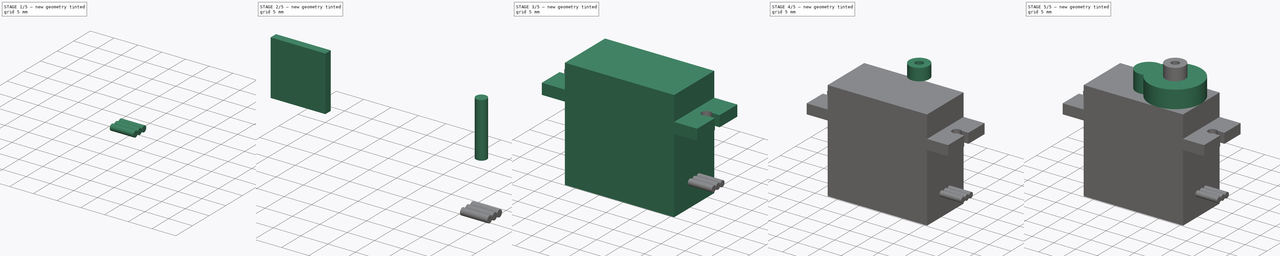
[diagram: build sequence overview — one tinted view per stage of 5, left to right]
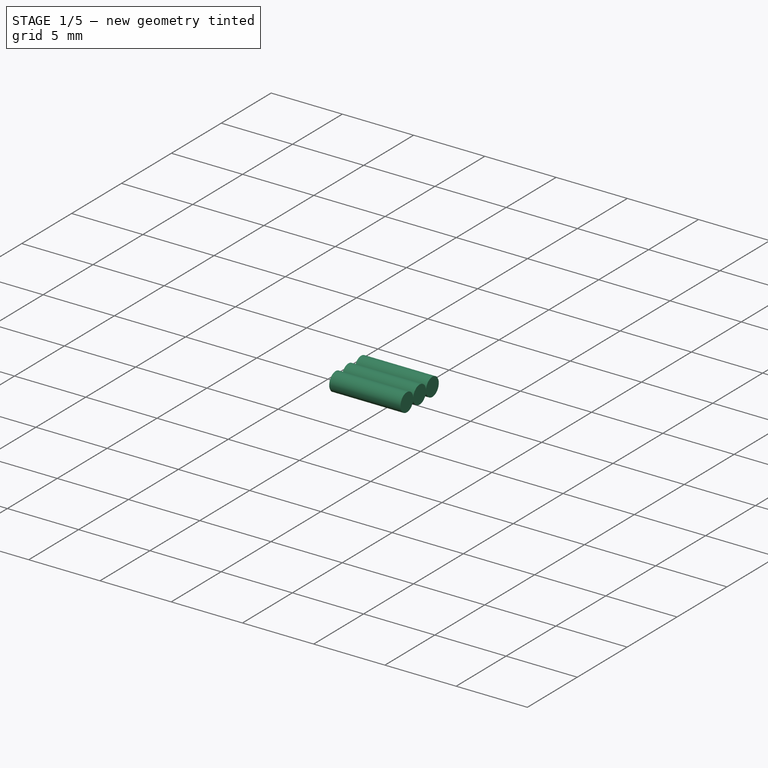
[diagram: stage 1 of 5 — iso view after this stage's code; geometry added in this stage tinted green]
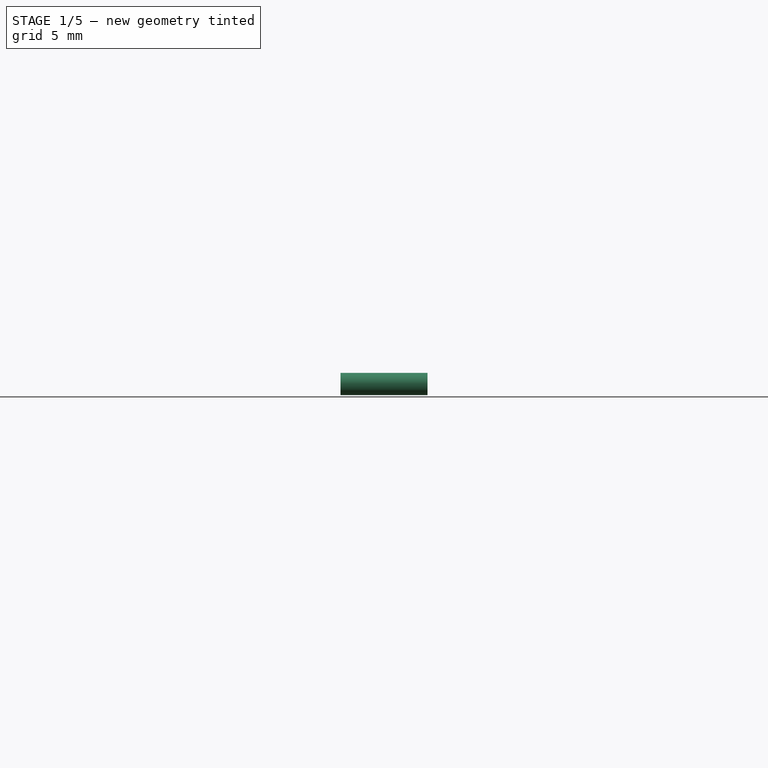
[diagram: stage 1 of 5 — front view after this stage's code; geometry added in this stage tinted green]
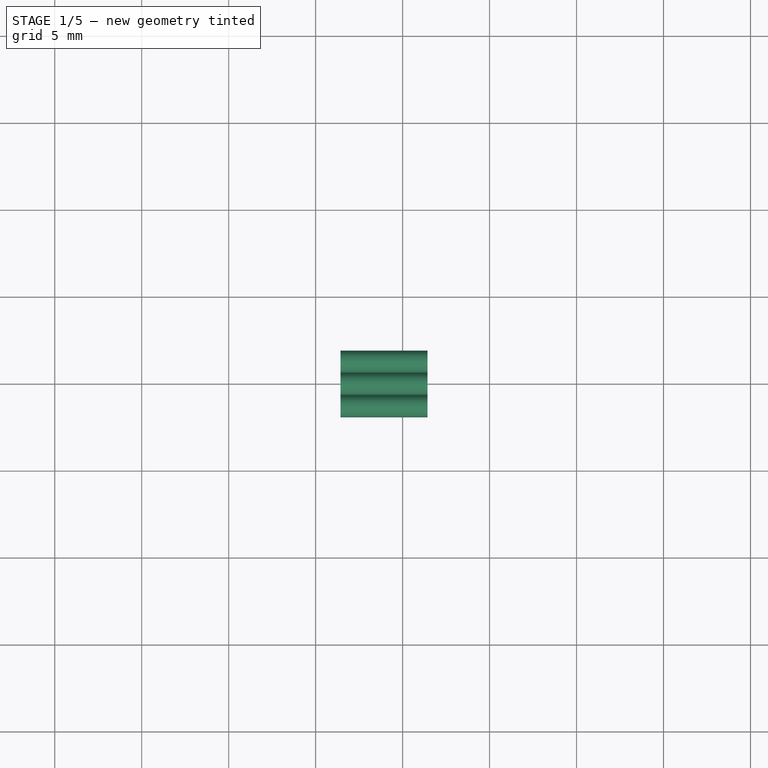
[diagram: stage 1 of 5 — top view after this stage's code; geometry added in this stage tinted green]
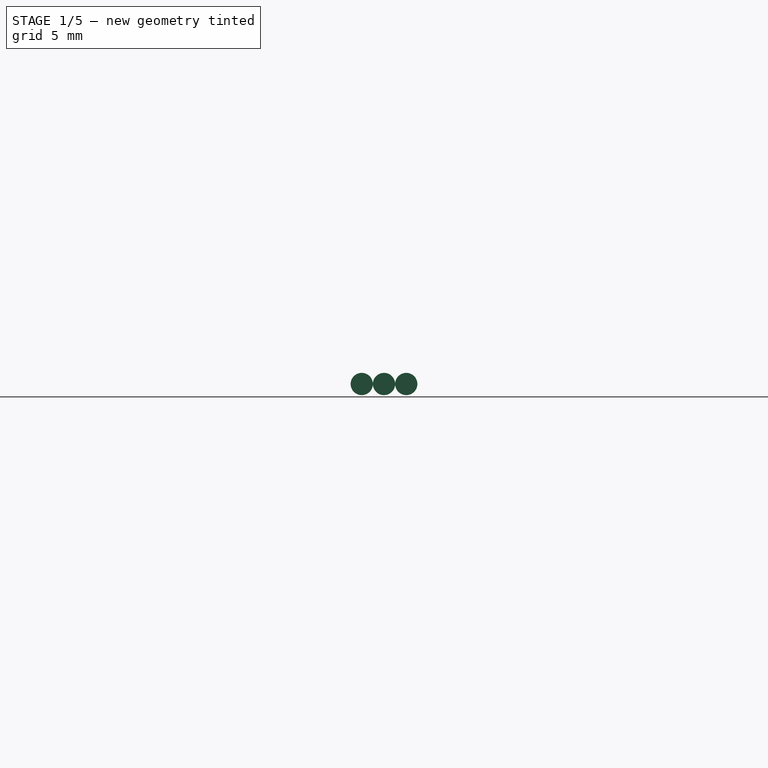
[diagram: stage 1 of 5 — right view after this stage's code; geometry added in this stage tinted green]
FCSTD DOCUMENT  (FreeCAD 0.14R2935 (Git))
Label: servo-00
License: CC-BY 3.0
LicenseURL: http://creativecommons.org/licenses/by/3.0/
objects: Part::Cylinder×8, Part::Cut×2, Part::Mirroring×2, Part::MultiFuse×2, Sketcher::SketchObject×1, PartDesign::Pad×1, Part::Box×1
note: 18 computed .brp shape members not serialized (recipe doc carries the construction recipe); baked Part::Feature solids carry a one-line shape summary decoded from their .brp

FEATURE [Part::Cylinder] Cylinder005
  Angle = 360
  Height = 5
  Placement = pos=(11.43,0,-12) rot=(0,1,0;1.5708rad)
  Radius = 0.64
FEATURE [Part::Cylinder] Cylinder006
  Angle = 360
  Height = 5
  Placement = pos=(11.43,-1.28,-12) rot=(0,1,0;1.5708rad)
  Radius = 0.64
FEATURE [Part::Cylinder] Cylinder007
  Angle = 360
  Height = 5
  Placement = pos=(11.43,1.28,-12) rot=(0,1,0;1.5708rad)
  Radius = 0.64
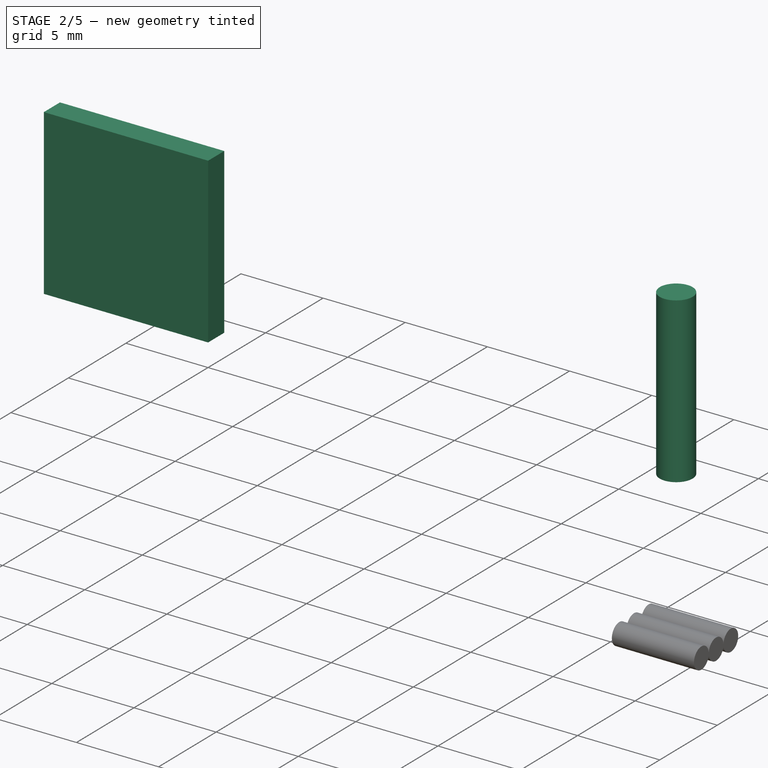
[diagram: stage 2 of 5 — iso view after this stage's code; geometry added in this stage tinted green]
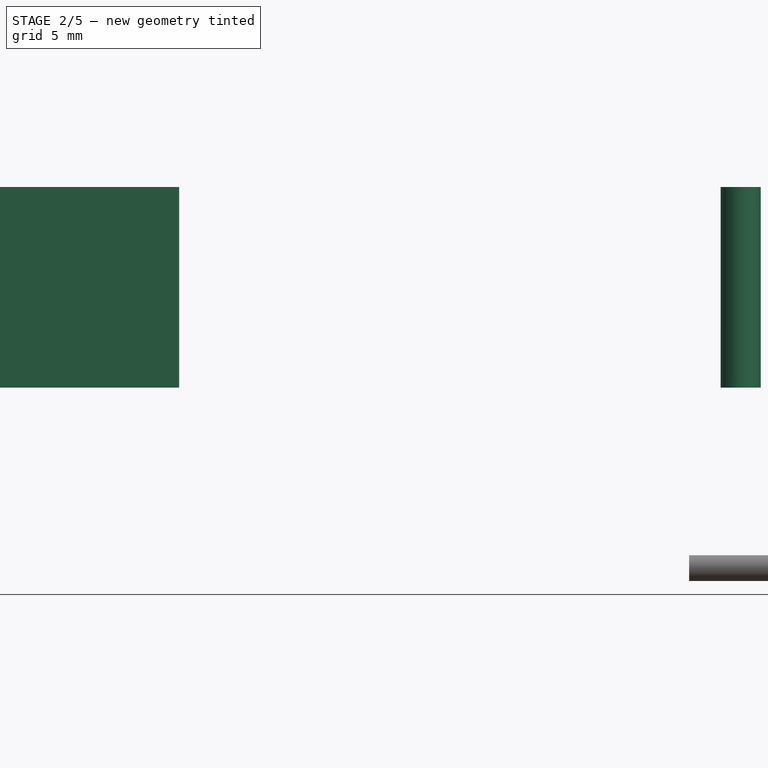
[diagram: stage 2 of 5 — front view after this stage's code; geometry added in this stage tinted green]
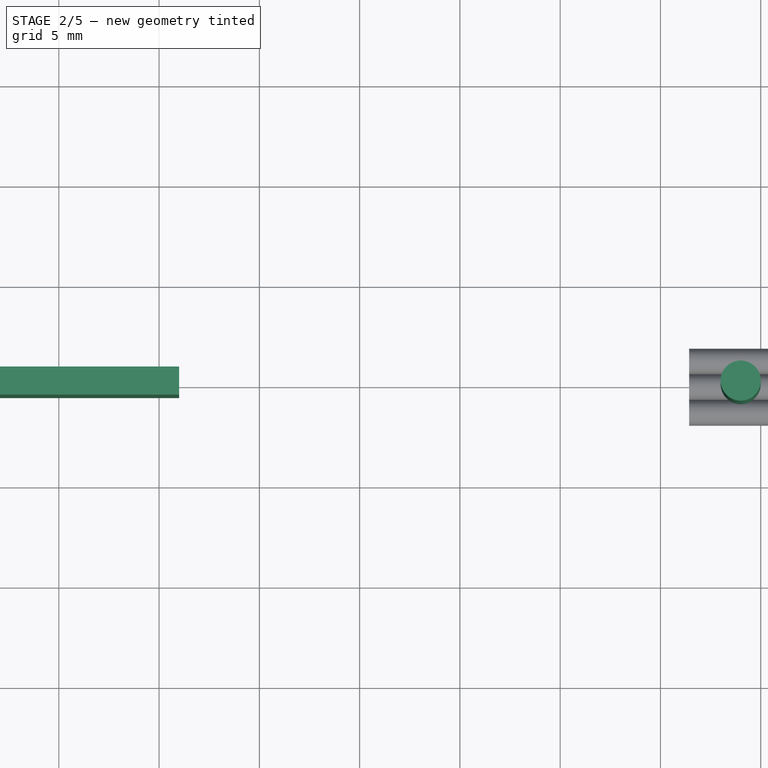
[diagram: stage 2 of 5 — top view after this stage's code; geometry added in this stage tinted green]
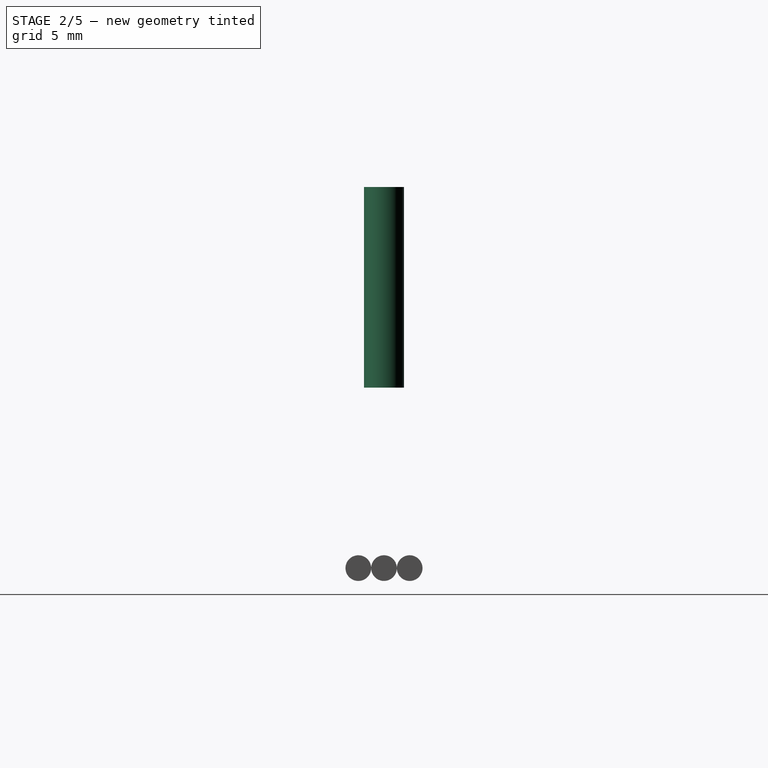
[diagram: stage 2 of 5 — right view after this stage's code; geometry added in this stage tinted green]
FEATURE [Part::Cylinder] Cylinder004
  Angle = 360
  Height = 10
  Placement = pos=(14,0,-3) rot=(0,0,1;0rad)
  Radius = 1
FEATURE [Part::Box] Box
  Height = 10
  Length = 10
  Placement = pos=(14,-0.7,-3) rot=(0,0,1;0rad)
  Width = 1.4
FEATURE [Part::Mirroring] Part__Mirroring001  label="Box (Mirror #2)"
  Base = (0,0,0)
  Normal = (1,0,0)
  Source = -> Box
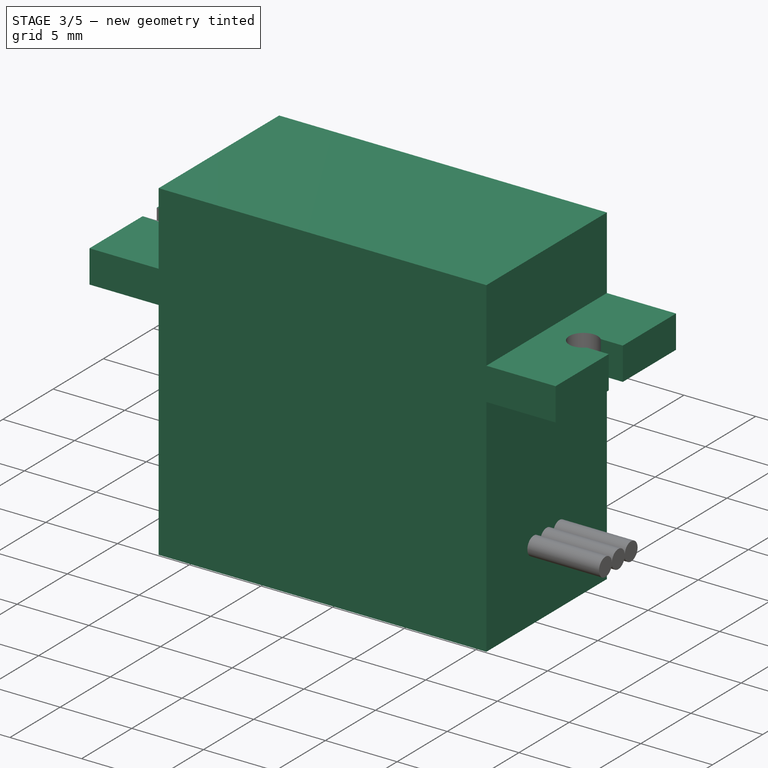
[diagram: stage 3 of 5 — iso view after this stage's code; geometry added in this stage tinted green]
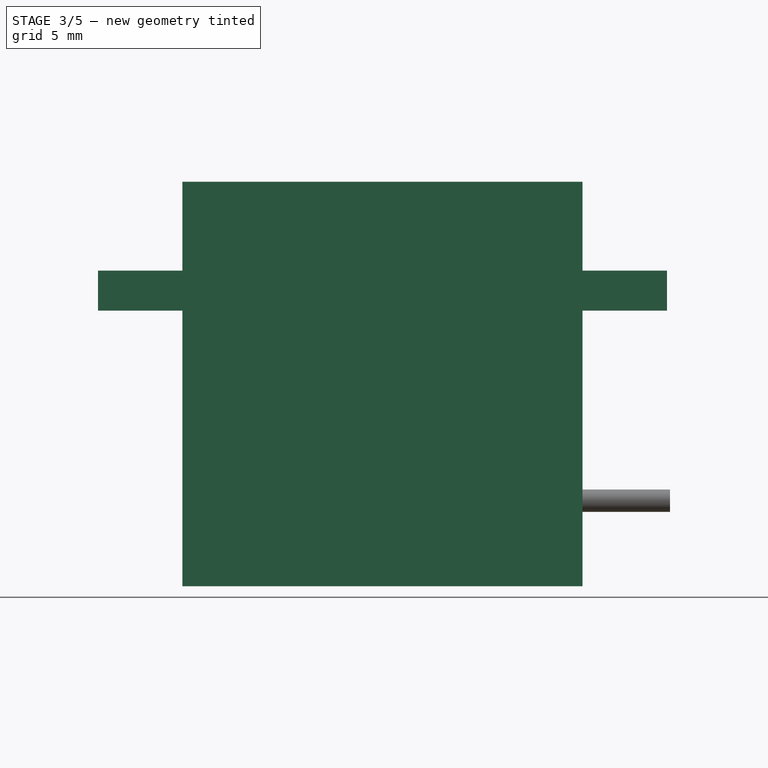
[diagram: stage 3 of 5 — front view after this stage's code; geometry added in this stage tinted green]
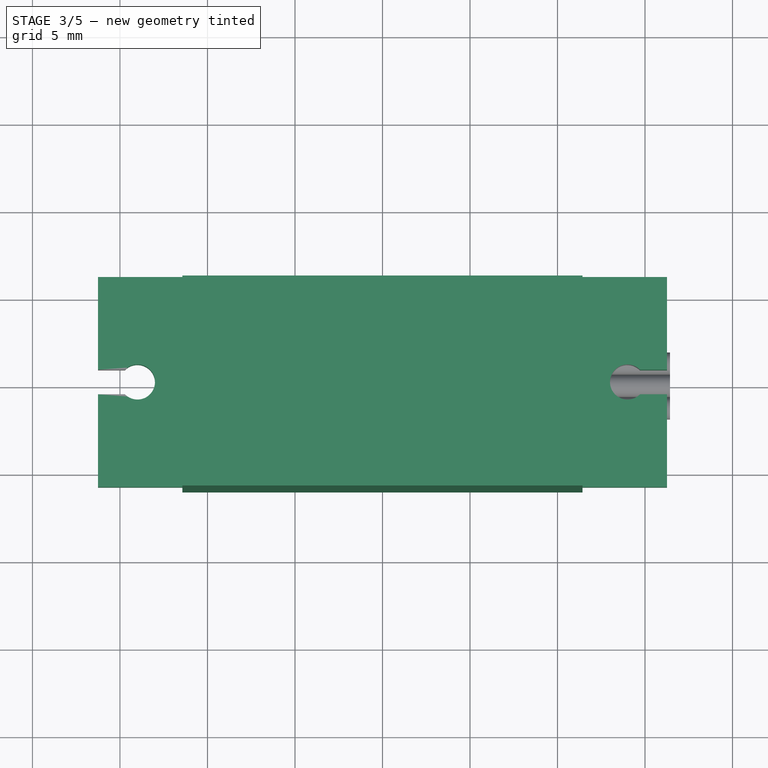
[diagram: stage 3 of 5 — top view after this stage's code; geometry added in this stage tinted green]
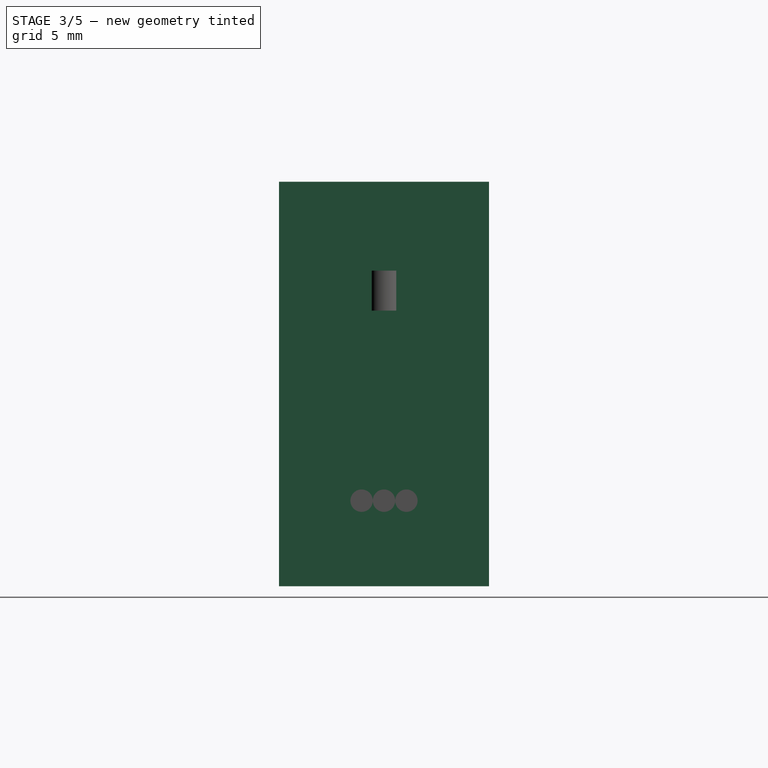
[diagram: stage 3 of 5 — right view after this stage's code; geometry added in this stage tinted green]
FEATURE [Sketcher::SketchObject] Sketch
  Placement = pos=(0,0,0) rot=(1,0,0;1.5708rad)
  sketch-geometry (12):
    g0: LineSegment StartX=16.256 StartY=1.143 StartZ=0 EndX=16.256 EndY=-1.143 EndZ=0
    g1: LineSegment StartX=16.256 StartY=-1.143 StartZ=0 EndX=11.43 EndY=-1.143 EndZ=0
    g2: LineSegment StartX=11.43 StartY=-1.143 StartZ=0 EndX=11.43 EndY=-16.891 EndZ=0
    g3: LineSegment StartX=11.43 StartY=-16.891 StartZ=0 EndX=-11.43 EndY=-16.891 EndZ=0
    g4: LineSegment StartX=-11.43 StartY=-16.891 StartZ=0 EndX=-11.43 EndY=-1.143 EndZ=0
    g5: LineSegment StartX=-11.43 StartY=-1.143 StartZ=0 EndX=-16.256 EndY=-1.143 EndZ=0
    g6: LineSegment StartX=-16.256 StartY=-1.143 StartZ=0 EndX=-16.256 EndY=1.143 EndZ=0
    g7: LineSegment StartX=-16.256 StartY=1.143 StartZ=0 EndX=-11.43 EndY=1.143 EndZ=0
    g8: LineSegment StartX=-11.43 StartY=1.143 StartZ=0 EndX=-11.43 EndY=6.223 EndZ=0
    g9: LineSegment StartX=-11.43 StartY=6.223 StartZ=0 EndX=11.43 EndY=6.223 EndZ=0
    g10: LineSegment StartX=11.43 StartY=6.223 StartZ=0 EndX=11.43 EndY=1.143 EndZ=0
    g11: LineSegment StartX=11.43 StartY=1.143 StartZ=0 EndX=16.256 EndY=1.143 EndZ=0
  constraints (35):
    c: Vertical(g0)
    c: Coincident(g0,g1)
    c: Horizontal(g1)
    c: Coincident(g1,g2)
    c: Vertical(g2)
    c: Coincident(g2,g3)
    c: Horizontal(g3)
    c: Coincident(g3,g4)
    c: Vertical(g4)
    c: Coincident(g4,g5)
    c: Horizontal(g5)
    c: Coincident(g5,g6)
    c: Vertical(g6)
    c: Symmetric(g6,g0,g-2)
    c: Symmetric(g3,g2,g-2)
    c: DistanceX(g-1,g3) = -11.43
    c: DistanceY(g-1,g6) = 1.143
    c: DistanceY(g-1,g5) = -1.143
    c: Symmetric(g4,g1,g-2)
    c: Coincident(g6,g7)
    c: Horizontal(g7)
    c: Coincident(g7,g8)
    c: Vertical(g8)
    c: Coincident(g8,g9)
    c: Horizontal(g9)
    c: Coincident(g9,g10)
    c: Vertical(g10)
    c: Coincident(g10,g11)
    c: Coincident(g11,g0)
    c: Horizontal(g11)
    c: Symmetric(g7,g10,g-2)
    c: DistanceX(g-1,g8) = -11.43
    c: DistanceY(g7,g8) = 5.08
    c: DistanceY(g5,g3) = -15.748
    c: DistanceX(g5,g4) = 4.826
FEATURE [PartDesign::Pad] Pad
  Length = 12
  Length2 = 100
  Midplane = true
  Placement = pos=(0,0,0) rot=(1,0,0;1.5708rad)
  Sketch = -> Sketch
  Type = 0
FEATURE [Part::Mirroring] Part__Mirroring  label="Cylinder004 (Mirror #1)"
  Base = (0,0,0)
  Normal = (1,0,0)
  Source = -> Cylinder004
FEATURE [Part::MultiFuse] Fusion
  Shapes = -> [Part__Mirroring,Part__Mirroring001,Cylinder004,Box]
FEATURE [Part::Cut] Cut001
  Base = -> Pad
  Tool = -> Fusion
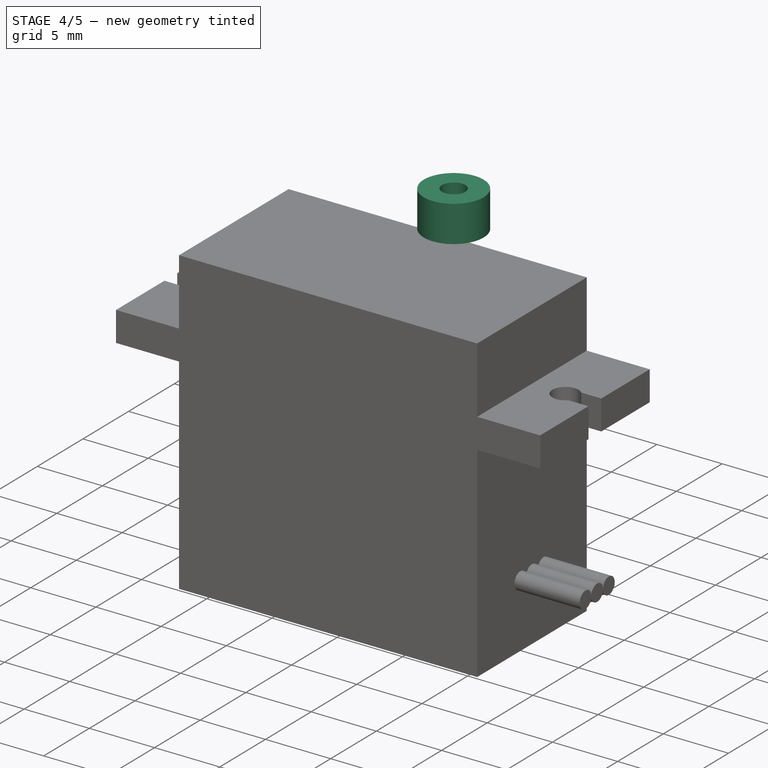
[diagram: stage 4 of 5 — iso view after this stage's code; geometry added in this stage tinted green]
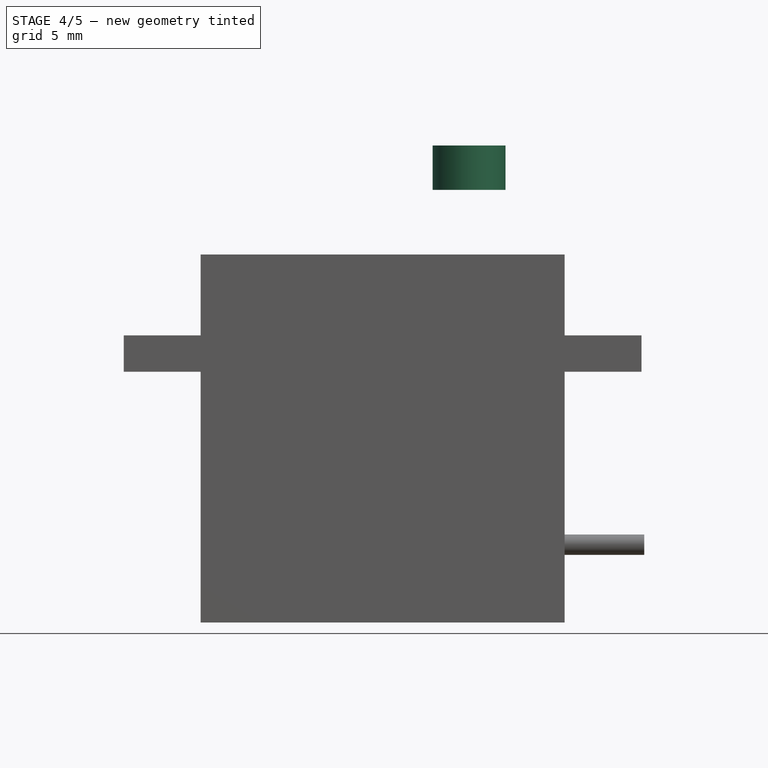
[diagram: stage 4 of 5 — front view after this stage's code; geometry added in this stage tinted green]
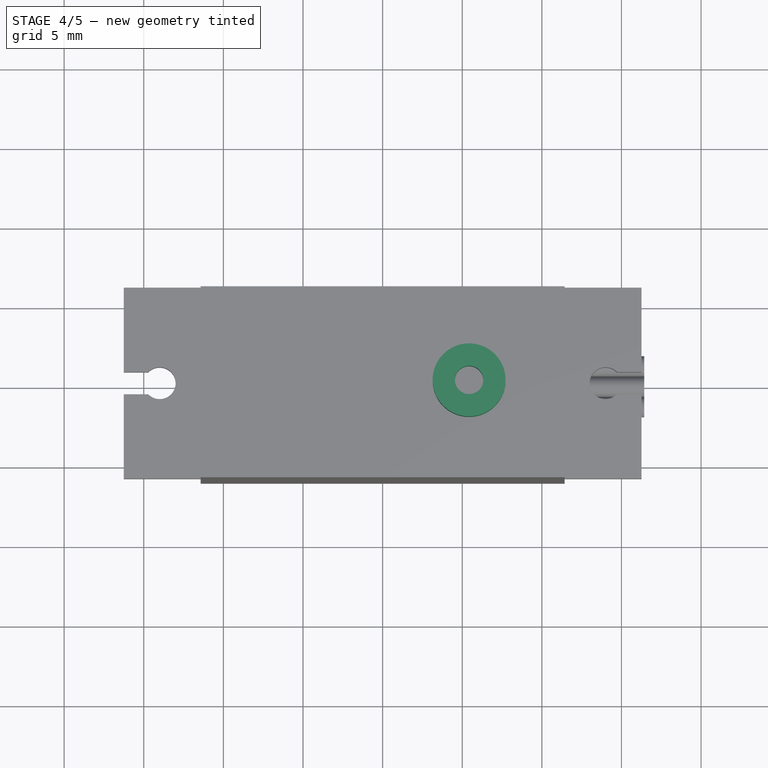
[diagram: stage 4 of 5 — top view after this stage's code; geometry added in this stage tinted green]
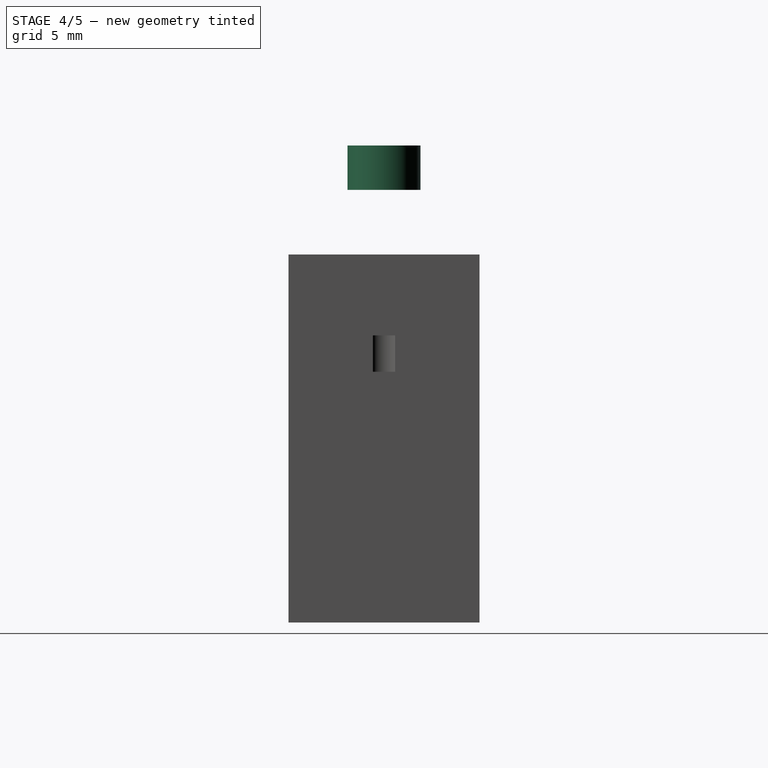
[diagram: stage 4 of 5 — right view after this stage's code; geometry added in this stage tinted green]
FEATURE [Part::Cylinder] Cylinder002
  Angle = 360
  Height = 2.79
  Placement = pos=(5.43,0,10.28) rot=(0,0,1;0rad)
  Radius = 2.29
FEATURE [Part::Cylinder] Cylinder003
  Angle = 360
  Height = 2.79
  Placement = pos=(5.43,0,10.28) rot=(0,0,1;0rad)
  Radius = 0.89
FEATURE [Part::Cut] Cut
  Base = -> Cylinder002
  Tool = -> Cylinder003
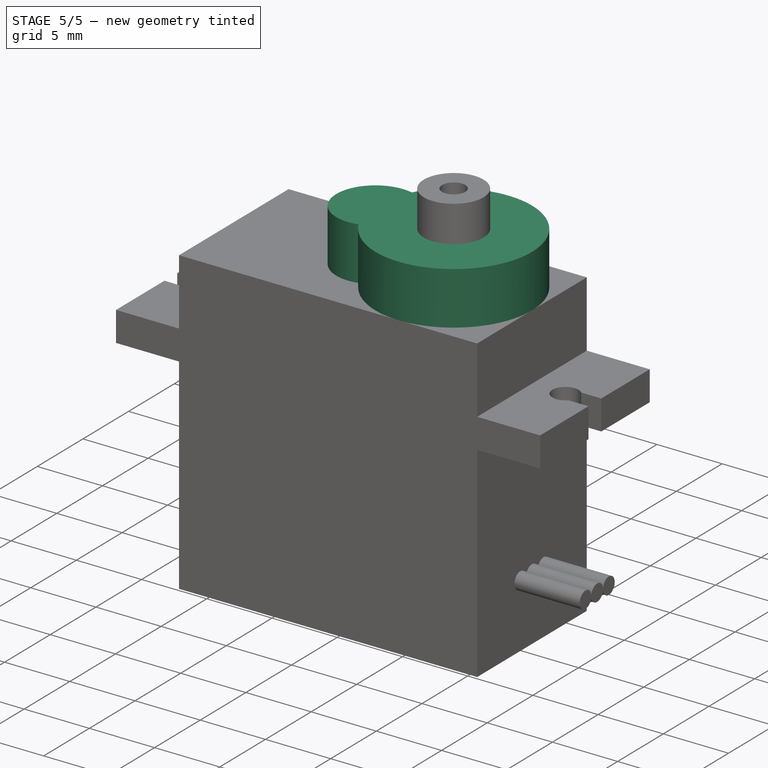
[diagram: stage 5 of 5 — iso view after this stage's code; geometry added in this stage tinted green]
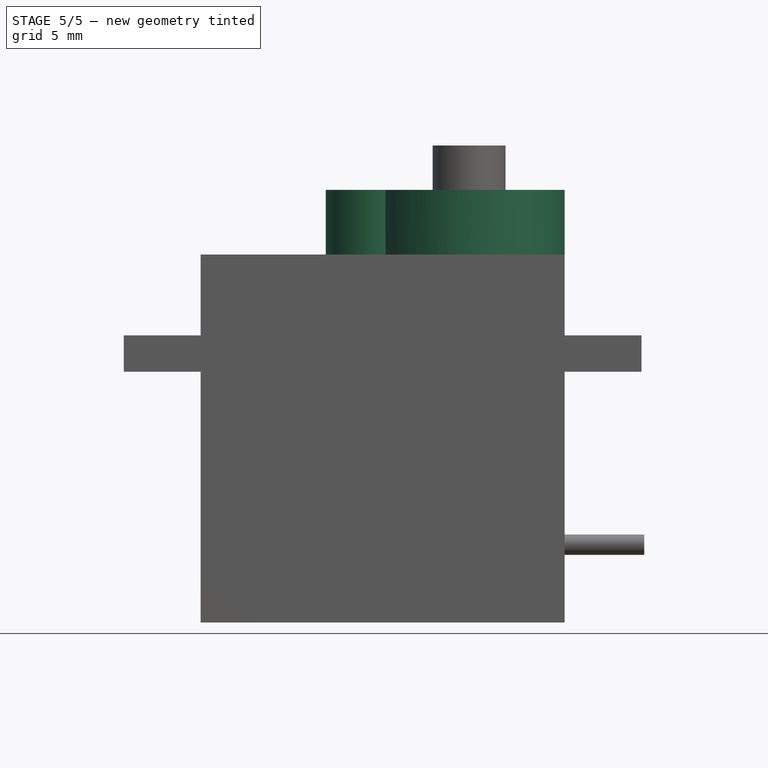
[diagram: stage 5 of 5 — front view after this stage's code; geometry added in this stage tinted green]
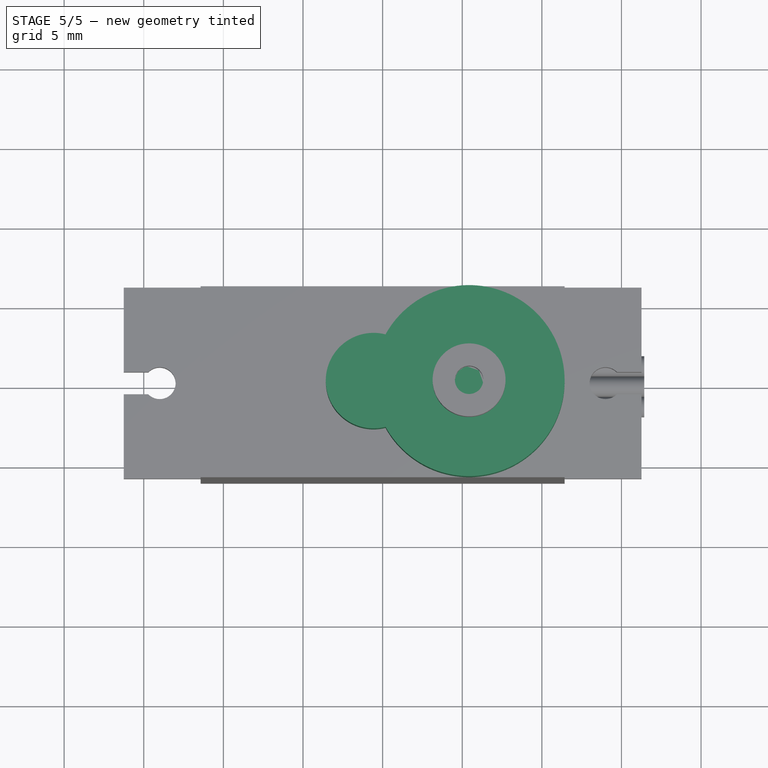
[diagram: stage 5 of 5 — top view after this stage's code; geometry added in this stage tinted green]
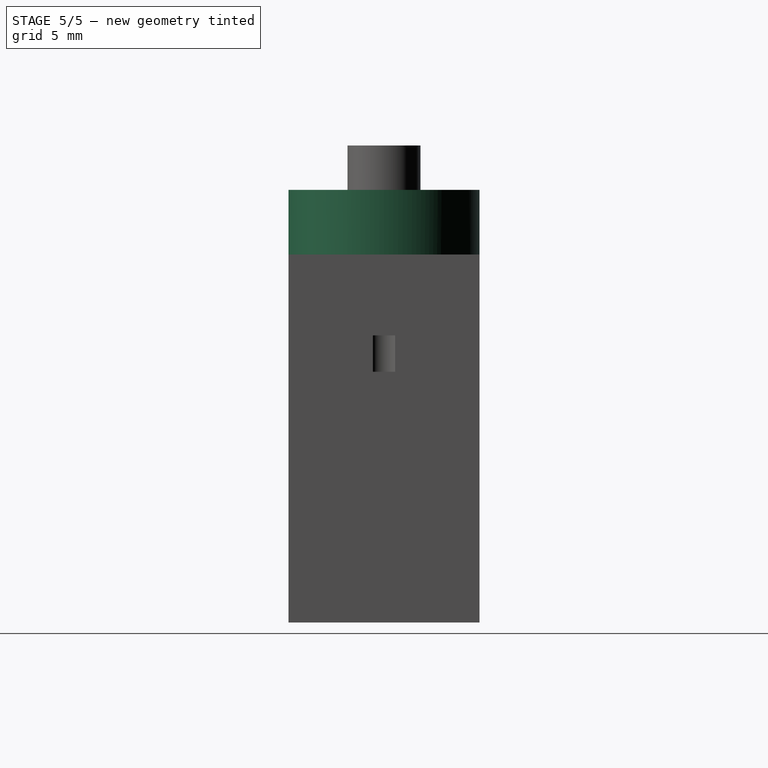
[diagram: stage 5 of 5 — right view after this stage's code; geometry added in this stage tinted green]
FEATURE [Part::Cylinder] Cylinder
  Angle = 360
  Height = 4.06
  Placement = pos=(5.43,0,6.22) rot=(0,0,1;0rad)
  Radius = 6
FEATURE [Part::Cylinder] Cylinder001
  Angle = 360
  Height = 4.06
  Placement = pos=(-0.57,0,6.22) rot=(0,0,1;0rad)
  Radius = 3
FEATURE [Part::MultiFuse] Fusion001  label="hxt900"
  Shapes = -> [Cylinder,Cylinder001,Cut,Cut001,Cylinder005,Cylinder006,Cylinder007]
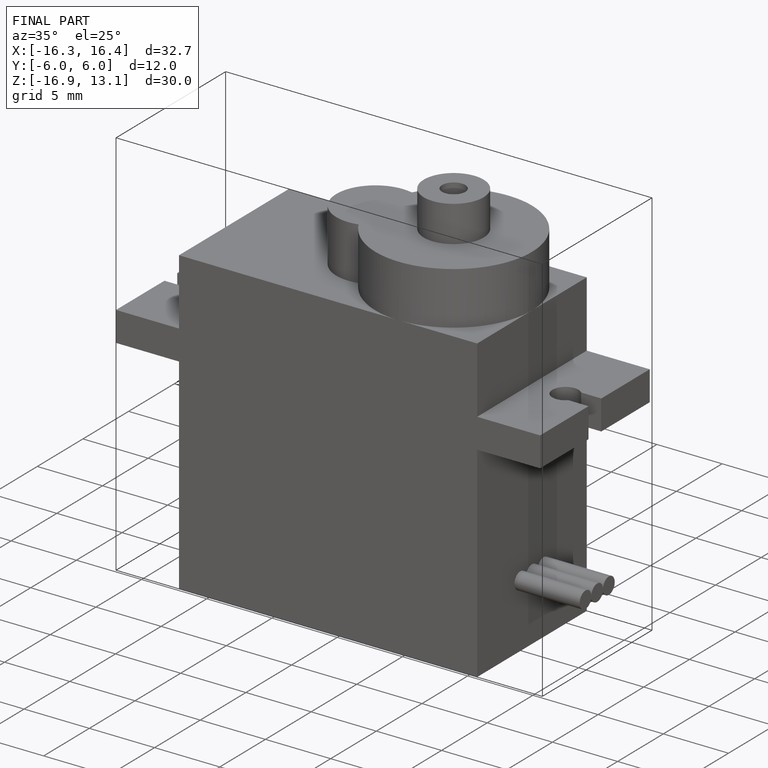
[diagram: finished part — iso view with bounding-box wireframe]
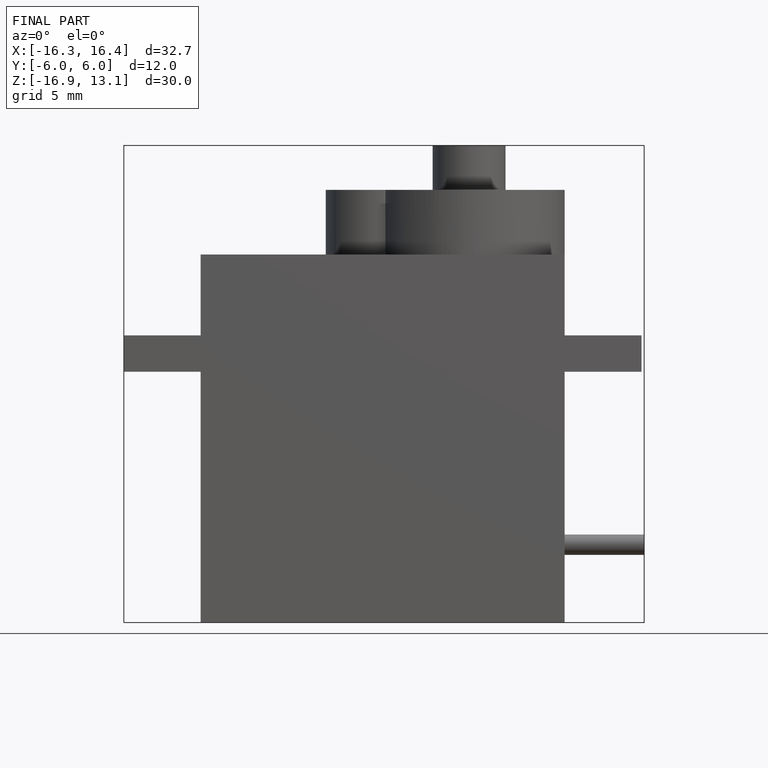
[diagram: finished part — front view with bounding-box wireframe]
